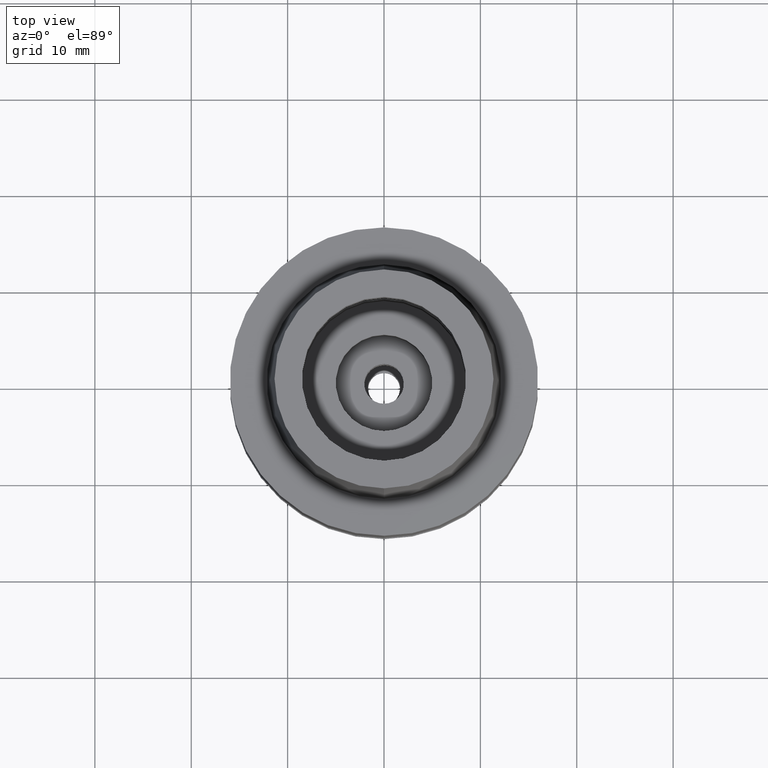
[diagram: clean part render]
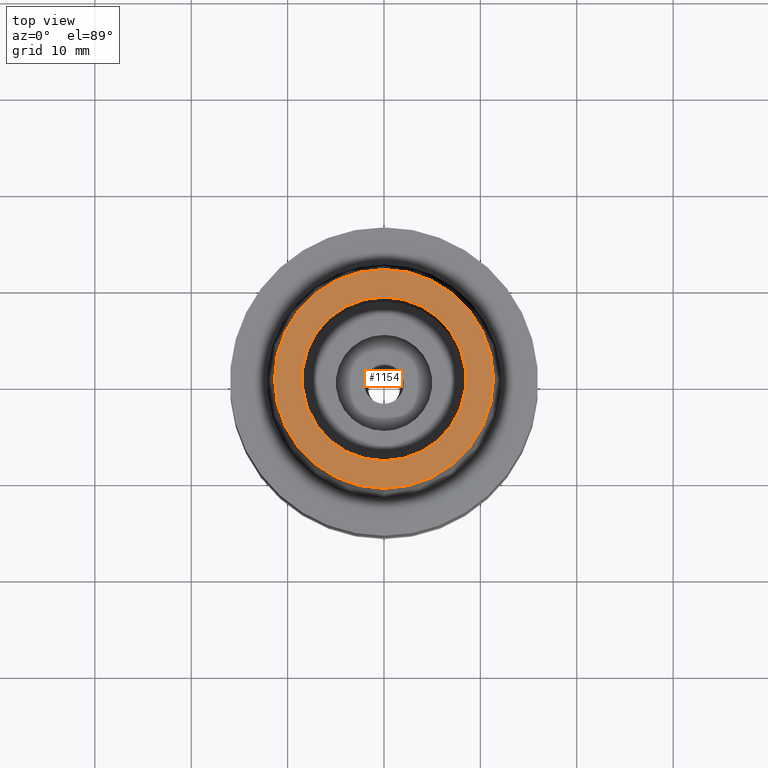
[diagram: same view with one face highlighted and labeled with its STEP entity id]
A machine part, top view. The second image highlights one B-rep face of the part: STEP entity #1154.
In plain terms, the highlighted planar face has unit normal (0, 0, 1).
Its self-contained STEP definition (entity closure, byte-faithful):
#8 = ORIENTED_EDGE ( 'NONE', *, *, #1946, .F. ) ;
#126 = DIRECTION ( 'NONE',  ( 0.0000000000000000000, 1.000000000000000000, 0.0000000000000000000 ) ) ;
#129 = EDGE_CURVE ( 'NONE', #2393, #1749, #691, .T. ) ;
#168 = EDGE_CURVE ( 'NONE', #299, #672, #868, .T. ) ;
#182 = CIRCLE ( 'NONE', #2058, 11.36000117044999946 ) ;
#228 = CARTESIAN_POINT ( 'NONE',  ( 0.0000000000000000000, 11.36000117044999946, 16.00000000000000000 ) ) ;
#266 = DIRECTION ( 'NONE',  ( 0.0000000000000000000, -1.000000000000000000, 0.0000000000000000000 ) ) ;
#286 = ORIENTED_EDGE ( 'NONE', *, *, #129, .F. ) ;
#295 = ORIENTED_EDGE ( 'NONE', *, *, #1313, .F. ) ;
#299 = VERTEX_POINT ( 'NONE', #2320 ) ;
#672 = VERTEX_POINT ( 'NONE', #1258 ) ;
#691 = CIRCLE ( 'NONE', #1961, 11.36000117044999946 ) ;
#698 = DIRECTION ( 'NONE',  ( 0.0000000000000000000, 0.0000000000000000000, 1.000000000000000000 ) ) ;
#868 = CIRCLE ( 'NONE', #2612, 8.500000000000000000 ) ;
#890 = FACE_OUTER_BOUND ( 'NONE', #2517, .T. ) ;
#963 = CARTESIAN_POINT ( 'NONE',  ( 0.0000000000000000000, 0.0000000000000000000, 16.00000000000000000 ) ) ;
#1036 = DIRECTION ( 'NONE',  ( 0.0000000000000000000, 0.0000000000000000000, -1.000000000000000000 ) ) ;
#1052 = DIRECTION ( 'NONE',  ( 1.000000000000000000, 0.0000000000000000000, 0.0000000000000000000 ) ) ;
#1110 = FACE_BOUND ( 'NONE', #1802, .T. ) ;
#1154 = ADVANCED_FACE ( 'NONE', ( #890, #1110 ), #1268, .T. ) ;
#1258 = CARTESIAN_POINT ( 'NONE',  ( 0.0000000000000000000, 8.500000000000000000, 16.00000000000000000 ) ) ;
#1268 = PLANE ( 'NONE',  #2143 ) ;
#1313 = EDGE_CURVE ( 'NONE', #1749, #2393, #182, .T. ) ;
#1480 = CARTESIAN_POINT ( 'NONE',  ( 0.0000000000000000000, -11.36000117044999946, 16.00000000000000000 ) ) ;
#1485 = CARTESIAN_POINT ( 'NONE',  ( 0.0000000000000000000, 0.0000000000000000000, 16.00000000000000000 ) ) ;
#1672 = AXIS2_PLACEMENT_3D ( 'NONE', #2000, #698, #126 ) ;
#1721 = DIRECTION ( 'NONE',  ( 0.0000000000000000000, 0.0000000000000000000, 1.000000000000000000 ) ) ;
#1749 = VERTEX_POINT ( 'NONE', #1480 ) ;
#1802 = EDGE_LOOP ( 'NONE', ( #8, #2388 ) ) ;
#1945 = DIRECTION ( 'NONE',  ( 0.0000000000000000000, 0.0000000000000000000, 1.000000000000000000 ) ) ;
#1946 = EDGE_CURVE ( 'NONE', #672, #299, #2022, .T. ) ;
#1960 = DIRECTION ( 'NONE',  ( 0.0000000000000000000, 0.0000000000000000000, -1.000000000000000000 ) ) ;
#1961 = AXIS2_PLACEMENT_3D ( 'NONE', #2103, #1036, #2090 ) ;
#2000 = CARTESIAN_POINT ( 'NONE',  ( 0.0000000000000000000, 0.0000000000000000000, 16.00000000000000000 ) ) ;
#2022 = CIRCLE ( 'NONE', #1672, 8.500000000000000000 ) ;
#2058 = AXIS2_PLACEMENT_3D ( 'NONE', #963, #1960, #2586 ) ;
#2090 = DIRECTION ( 'NONE',  ( 0.0000000000000000000, 1.000000000000000000, 0.0000000000000000000 ) ) ;
#2103 = CARTESIAN_POINT ( 'NONE',  ( 0.0000000000000000000, 0.0000000000000000000, 16.00000000000000000 ) ) ;
#2143 = AXIS2_PLACEMENT_3D ( 'NONE', #1485, #1945, #1052 ) ;
#2320 = CARTESIAN_POINT ( 'NONE',  ( 0.0000000000000000000, -8.500000000000000000, 16.00000000000000000 ) ) ;
#2378 = CARTESIAN_POINT ( 'NONE',  ( 0.0000000000000000000, 0.0000000000000000000, 16.00000000000000000 ) ) ;
#2388 = ORIENTED_EDGE ( 'NONE', *, *, #168, .F. ) ;
#2393 = VERTEX_POINT ( 'NONE', #228 ) ;
#2517 = EDGE_LOOP ( 'NONE', ( #286, #295 ) ) ;
#2586 = DIRECTION ( 'NONE',  ( 0.0000000000000000000, -1.000000000000000000, 0.0000000000000000000 ) ) ;
#2612 = AXIS2_PLACEMENT_3D ( 'NONE', #2378, #1721, #266 ) ;